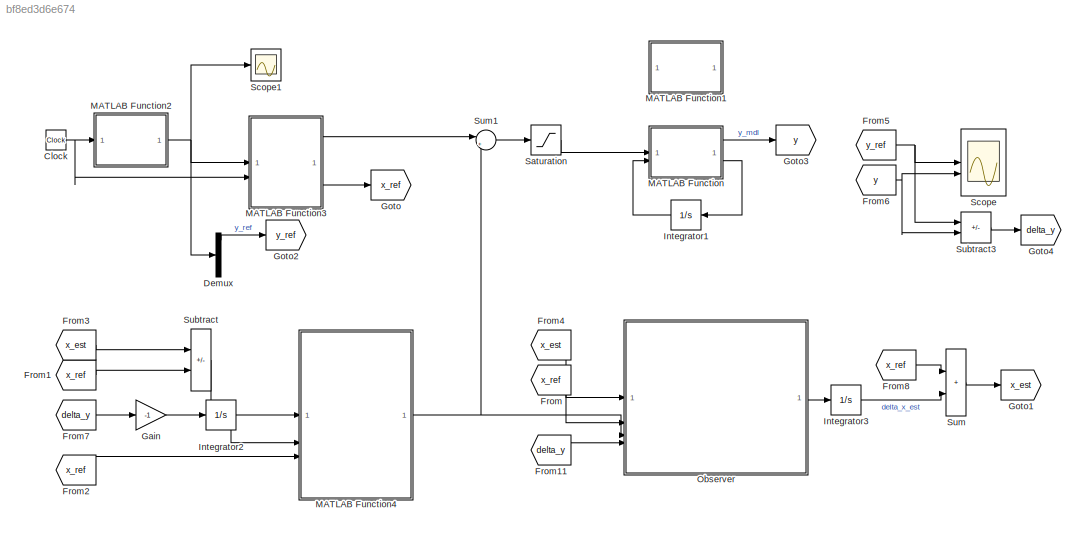
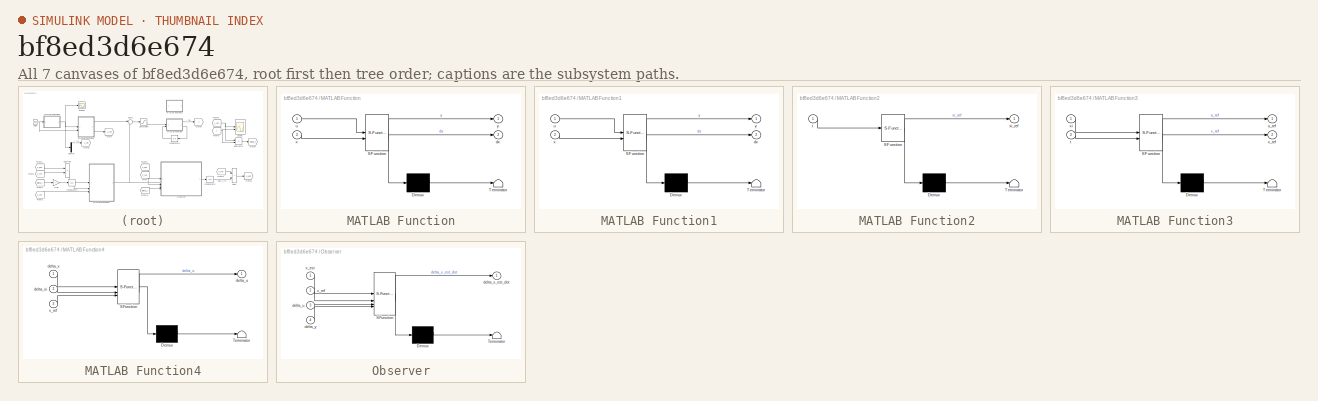
[diagram: thumbnail index - all 7 canvases of the model, root first then tree order]
MODEL slx_bf8ed3d6e674
KIND model
CONFIG AbsTol = auto
CONFIG EnableMultiTasking = off
CONFIG FixedStep = 0.01
CONFIG MaxStep = 0.01
CONFIG MinStep = auto
CONFIG RelTol = 1e-3
CONFIG SampleTimeConstraint = Unconstrained
CONFIG SolverName = VariableStepAuto
CONFIG StartTime = 0.0
CONFIG StopTime = param.T
BLOCK [Clock] Clock
BLOCK [Demux] Demux
  Outputs = 5
BLOCK [From] From
  GotoTag = x_ref
BLOCK [From] From1
  GotoTag = x_ref
BLOCK [From] From11
  GotoTag = delta_y
BLOCK [From] From2
  GotoTag = x_ref
BLOCK [From] From3
  GotoTag = x_est
BLOCK [From] From4
  GotoTag = x_est
BLOCK [From] From5
  GotoTag = y_ref
BLOCK [From] From6
  GotoTag = y
BLOCK [From] From7
  GotoTag = delta_y
BLOCK [From] From8
  GotoTag = x_ref
BLOCK [Gain] Gain
  Gain = -1
BLOCK [Goto] Goto
  GotoTag = x_ref
BLOCK [Goto] Goto1
  GotoTag = x_est
BLOCK [Goto] Goto2
  GotoTag = y_ref
BLOCK [Goto] Goto3
  GotoTag = y
BLOCK [Goto] Goto4
  GotoTag = delta_y
BLOCK [Integrator] Integrator1
  InitialCondition = param.x0
BLOCK [Integrator] Integrator2
BLOCK [Integrator] Integrator3
  InitialCondition = param.delta_x_est0
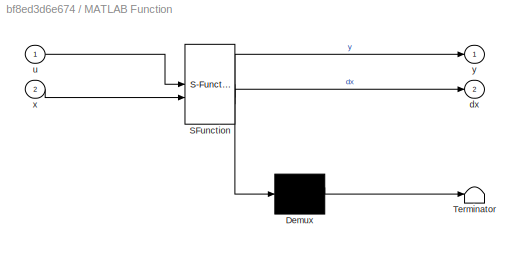
BLOCK [SubSystem] MATLAB Function
  ErrorFcn = Stateflow.Translate.translate
  PermitHierarchicalResolution = ExplicitOnly
  SFBlockType = MATLAB Function
  TreatAsAtomicUnit = on
BLOCK [Demux] MATLAB Function/ Demux 
  Outputs = 1
BLOCK [S-Function] MATLAB Function/ SFunction 
  EnableBusSupport = on
  FunctionName = sf_sfun
  Parameters = param
  PortCounts = [2 3]
  SFcnIsStateOwnerBlock = off
  SFunctionDeploymentMode = off
  Tag = Stateflow S-Function 2
BLOCK [Terminator] MATLAB Function/ Terminator 
BLOCK [Outport] MATLAB Function/dx
  Port = 2
BLOCK [Inport] MATLAB Function/u
BLOCK [Inport] MATLAB Function/x
  Port = 2
BLOCK [Outport] MATLAB Function/y
BLOCK [SubSystem] MATLAB Function1
  Commented = on
  ErrorFcn = Stateflow.Translate.translate
  PermitHierarchicalResolution = ExplicitOnly
  SFBlockType = MATLAB Function
  TreatAsAtomicUnit = on
BLOCK [Demux] MATLAB Function1/ Demux 
  Outputs = 1
BLOCK [S-Function] MATLAB Function1/ SFunction 
  EnableBusSupport = on
  FunctionName = sf_sfun
  Parameters = param
  PortCounts = [2 3]
  SFcnIsStateOwnerBlock = off
  SFunctionDeploymentMode = off
  Tag = Stateflow S-Function 1
BLOCK [Terminator] MATLAB Function1/ Terminator 
BLOCK [Outport] MATLAB Function1/dx
  Port = 2
BLOCK [Inport] MATLAB Function1/u
BLOCK [Inport] MATLAB Function1/x
  Port = 2
BLOCK [Outport] MATLAB Function1/y
BLOCK [SubSystem] MATLAB Function2
  ErrorFcn = Stateflow.Translate.translate
  PermitHierarchicalResolution = ExplicitOnly
  SFBlockType = MATLAB Function
  TreatAsAtomicUnit = on
BLOCK [Demux] MATLAB Function2/ Demux 
  Outputs = 1
BLOCK [S-Function] MATLAB Function2/ SFunction 
  EnableBusSupport = on
  FunctionName = sf_sfun
  Parameters = param
  PortCounts = [1 2]
  SFcnIsStateOwnerBlock = off
  SFunctionDeploymentMode = off
  Tag = Stateflow S-Function 3
BLOCK [Terminator] MATLAB Function2/ Terminator 
BLOCK [Inport] MATLAB Function2/t
BLOCK [Outport] MATLAB Function2/xi_ref
BLOCK [SubSystem] MATLAB Function3
  ErrorFcn = Stateflow.Translate.translate
  PermitHierarchicalResolution = ExplicitOnly
  SFBlockType = MATLAB Function
  TreatAsAtomicUnit = on
BLOCK [Demux] MATLAB Function3/ Demux 
  Outputs = 1
BLOCK [S-Function] MATLAB Function3/ SFunction 
  EnableBusSupport = on
  FunctionName = sf_sfun
  Parameters = param
  PortCounts = [2 3]
  SFcnIsStateOwnerBlock = off
  SFunctionDeploymentMode = off
  Tag = Stateflow S-Function 4
BLOCK [Terminator] MATLAB Function3/ Terminator 
BLOCK [Inport] MATLAB Function3/t
  Port = 2
BLOCK [Outport] MATLAB Function3/u_ref
BLOCK [Outport] MATLAB Function3/x_ref
  Port = 2
BLOCK [Inport] MATLAB Function3/xi
BLOCK [SubSystem] MATLAB Function4
  ErrorFcn = Stateflow.Translate.translate
  PermitHierarchicalResolution = ExplicitOnly
  SFBlockType = MATLAB Function
  TreatAsAtomicUnit = on
BLOCK [Demux] MATLAB Function4/ Demux 
  Outputs = 1
BLOCK [S-Function] MATLAB Function4/ SFunction 
  EnableBusSupport = on
  FunctionName = sf_sfun
  Parameters = param
  PortCounts = [3 2]
  SFcnIsStateOwnerBlock = off
  SFunctionDeploymentMode = off
  Tag = Stateflow S-Function 5
BLOCK [Terminator] MATLAB Function4/ Terminator 
BLOCK [Outport] MATLAB Function4/delta_u
BLOCK [Inport] MATLAB Function4/delta_x
BLOCK [Inport] MATLAB Function4/delta_xi
  Port = 2
BLOCK [Inport] MATLAB Function4/x_ref
  Port = 3
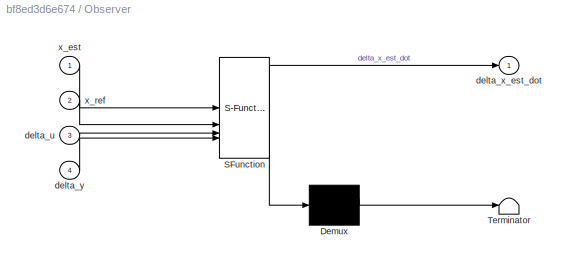
BLOCK [SubSystem] Observer
  ErrorFcn = Stateflow.Translate.translate
  PermitHierarchicalResolution = ExplicitOnly
  SFBlockType = MATLAB Function
  TreatAsAtomicUnit = on
BLOCK [Demux] Observer/ Demux 
  Outputs = 1
BLOCK [S-Function] Observer/ SFunction 
  EnableBusSupport = on
  FunctionName = sf_sfun
  Parameters = param
  PortCounts = [4 2]
  SFcnIsStateOwnerBlock = off
  SFunctionDeploymentMode = off
  Tag = Stateflow S-Function 6
BLOCK [Terminator] Observer/ Terminator 
BLOCK [Inport] Observer/delta_u
  Port = 3
BLOCK [Outport] Observer/delta_x_est_dot
BLOCK [Inport] Observer/delta_y
  Port = 4
BLOCK [Inport] Observer/x_est
BLOCK [Inport] Observer/x_ref
  Port = 2
BLOCK [Saturate] Saturation
  LowerLimit = -10
  UpperLimit = 10
BLOCK [Scope] Scope
  Floating = off
  NumInputPorts = 2
  ScopeSpecificationString = Simulink.scopes.TimeScopeBlockCfg('CurrentConfiguration', extmgr.ConfigurationSet(extmgr.Configuration('Core','General UI',true),extmgr.Configuration('Core','Source UI',true),extmgr.Configuration('Sources','WiredSimulink',true),extmgr.Configuration('Visuals','Time Domain',true,'SerializedDisplays',{struct('MinYLimReal','-0.41044','MaxYLimReal','3.53932','YLabelReal','','MinYLimMag','0.00000','MaxY...<+1555ch>
BLOCK [Scope] Scope1
  Floating = off
  NumInputPorts = 1
  ScopeSpecificationString = Simulink.scopes.TimeScopeBlockCfg('CurrentConfiguration', extmgr.ConfigurationSet(extmgr.Configuration('Core','General UI',true),extmgr.Configuration('Core','Source UI',true),extmgr.Configuration('Sources','WiredSimulink',true,'DataLoggingVariableName','ScopeData1'),extmgr.Configuration('Visuals','Time Domain',true,'SerializedDisplays',{struct('MinYLimReal','-2444.58854','MaxYLimReal','2444.17702'...<+1579ch>
BLOCK [Sum] Subtract
  IconShape = rectangular
  Inputs = +-
BLOCK [Sum] Subtract3
  IconShape = rectangular
  Inputs = -+
BLOCK [Sum] Sum
  IconShape = rectangular
BLOCK [Sum] Sum1
  Inputs = |++
NET Clock:1 -> MATLAB Function2:1, MATLAB Function3:2
LINE Demux:1 -> Goto2:1
LINE From11:1 -> Observer:4
LINE From1:1 -> Subtract:2
LINE From2:1 -> MATLAB Function4:3
LINE From3:1 -> Subtract:1
LINE From4:1 -> Observer:1
NET From5:1 -> Scope:1, Subtract3:1
NET From6:1 -> Scope:2, Subtract3:2
LINE From7:1 -> Gain:1
LINE From8:1 -> Sum:1
LINE From:1 -> Observer:2
LINE Gain:1 -> Integrator2:1
LINE Integrator1:1 -> MATLAB Function:2
LINE Integrator2:1 -> MATLAB Function4:2
LINE Integrator3:1 -> Sum:2
NET MATLAB Function2:1 -> Demux:1, MATLAB Function3:1, Scope1:1
LINE MATLAB Function3:1 -> Sum1:1
LINE MATLAB Function3:2 -> Goto:1
NET MATLAB Function4:1 -> Observer:3, Sum1:2
LINE MATLAB Function:1 -> Goto3:1
LINE MATLAB Function:2 -> Integrator1:1
LINE Observer:1 -> Integrator3:1
LINE Saturation:1 -> MATLAB Function:1
LINE Subtract3:1 -> Goto4:1
LINE Subtract:1 -> MATLAB Function4:1
LINE Sum1:1 -> Saturation:1
LINE Sum:1 -> Goto1:1
note: NET lines group one-source signal fan-out (src -> all destinations, sorted); 1:1 wires keep LINE
CHART MATLAB Function1 states=1 transitions=1
  STATE_LABEL 'eML_blk_kernel()'
  STATE_LABEL 'SCRIPT:\nfunction [y, dx]= ctrl_mdl(u, x, param)\n\n    g = param.g;\n%     l_c = param.l_c;\n%     l_ax = param.l_ax;\n%     l_ay = param.l_ay;\n%     k_f = param.k_t;\n%     s_0 = param.s_0;\n    k_r = param.kr;\n    m_B1 = param.m_B1;\n    m_B2 = param.m_B2;\n%     l_B1 = param.l_B1;\n%     l_B2 = param.l_B2;\n    J_Pzz = param.J_Pzz;\n    d_P = param.d_P;\n    R_m = param.R_m;\n    k_b = param.k_b;\n    k_m = p...<+659ch>'
CHART MATLAB Function states=1 transitions=1
  STATE_LABEL 'eML_blk_kernel()'
  STATE_LABEL 'SCRIPT:\nfunction [y, dx]= sim_mdl(u, x, param)\n\n    g = param.g;\n    l_c = param.l_c;\n    l_ax = param.l_ax;\n    l_ay = param.l_ay;\n    k_f = param.k_t;\n    s_0 = param.s_0;\n    m_B1 = param.m_B1;\n    m_B2 = param.m_B2;\n%     l_B1 = param.l_B1;\n%     l_B2 = param.l_B2;\n    J_Pzz = param.J_Pzz;\n    d_P = param.d_P;\n    R_m = param.R_m;\n    k_b = param.k_b;\n    k_m = param.k_m;\n    K_g = param.K_g;\n...<+1649ch>'
CHART MATLAB Function2 states=1 transitions=1
  STATE_LABEL 'eML_blk_kernel()'
  STATE_LABEL 'SCRIPT:\nfunction xi_ref = fcn(t, param)\n\n    beta = param.beta;\n    lambda_R0 = param.lambda_R0;\n    lambda_R1 = param.lambda_R1;\n    t_0 = param.t_0;\n    t_1 = param.t_1;\n\n    xi_ref = zeros(5, 1);\n    if t<t_0\n        xi_ref(1) = lambda_R0;\n    elseif t>=t_1\n        xi_ref(1) = lambda_R1;\n    else\n        xi_ref = zeros(5,1);\n        xi_ref(1) = lambda_R0 + ((t - t_0)^9*(70*lambda_R0 - 70*lambda...<+1657ch>'
CHART MATLAB Function3 states=1 transitions=1
  STATE_LABEL 'eML_blk_kernel()'
  STATE_LABEL 'SCRIPT:\nfunction [u_ref, x_ref] = fcn(xi, param, t)\n    \n    g = param.g;\n%     l_c = param.l_c;\n%     l_ax = param.l_ax;\n%     l_ay = param.l_ay;\n%     k_f = param.k_t;\n%     s_0 = param.s_0;\n    k_r = param.kr;\n    m_B1 = param.m_B1;\n    m_B2 = param.m_B2;\n%     l_B1 = param.l_B1;\n%     l_B2 = param.l_B2;\n    J_Pzz = param.J_Pzz;\n    d_P = param.d_P;\n    R_m = param.R_m;\n    k_b = param.k_b;\n   ...<+1531ch>'
CHART MATLAB Function4 states=1 transitions=1
  STATE_LABEL 'eML_blk_kernel()'
  STATE_LABEL 'SCRIPT:\nfunction delta_u = control(delta_x, delta_xi, x_ref, param)\n\n    g = param.g;\n%     l_c = param.l_c;\n%     l_ax = param.l_ax;\n%     l_ay = param.l_ay;\n%     k_f = param.k_t;\n%     s_0 = param.s_0;\n    k_r = param.kr;\n    m_B1 = param.m_B1;\n    m_B2 = param.m_B2;\n%     l_B1 = param.l_B1;\n%     l_B2 = param.l_B2;\n    J_Pzz = param.J_Pzz;\n    d_P = param.d_P;\n    R_m = param.R_m;\n    k_b = pa...<+3608ch>'
CHART Observer states=1 transitions=1
  STATE_LABEL 'eML_blk_kernel()'
  STATE_LABEL 'SCRIPT:\nfunction delta_x_est_dot  = observer(x_est, x_ref, delta_u, delta_y, param)\n    \n    g = param.g;\n%     l_c = param.l_c;\n%     l_ax = param.l_ax;\n%     l_ay = param.l_ay;\n%     k_f = param.k_t;\n%     s_0 = param.s_0;\n    k_r = param.kr;\n    m_B1 = param.m_B1;\n    m_B2 = param.m_B2;\n%     l_B1 = param.l_B1;\n%     l_B2 = param.l_B2;\n    J_Pzz = param.J_Pzz;\n    d_P = param.d_P;\n    R_m = par...<+3608ch>'
CHART  states=0 transitions=0
CHART  states=0 transitions=0
CHART  states=0 transitions=0
CHART  states=0 transitions=0
CHART  states=0 transitions=0
CHART  states=0 transitions=0
